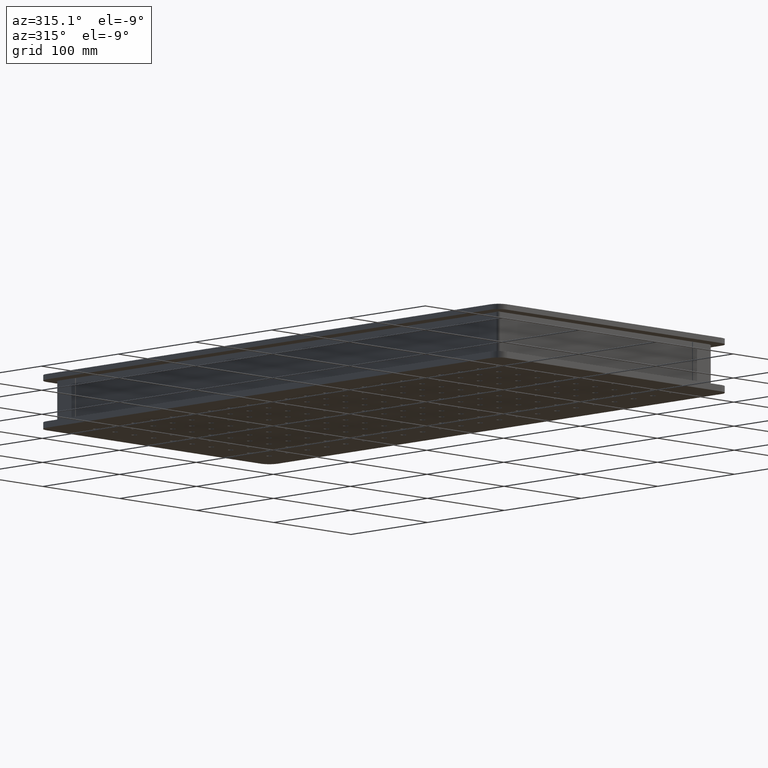
[diagram: clean part render]
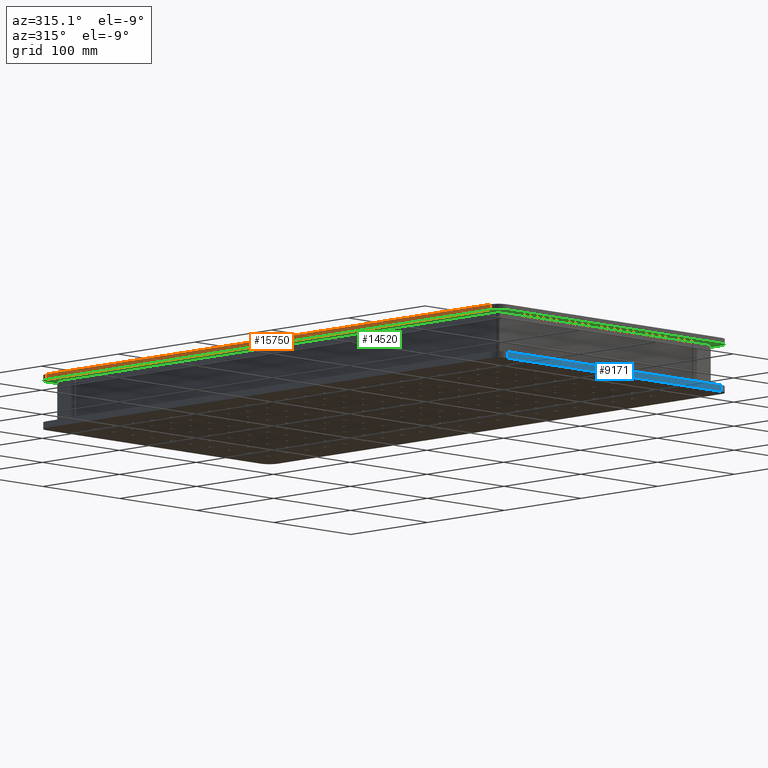
[diagram: same view with three faces highlighted in distinct colors, each labeled with its STEP entity id]
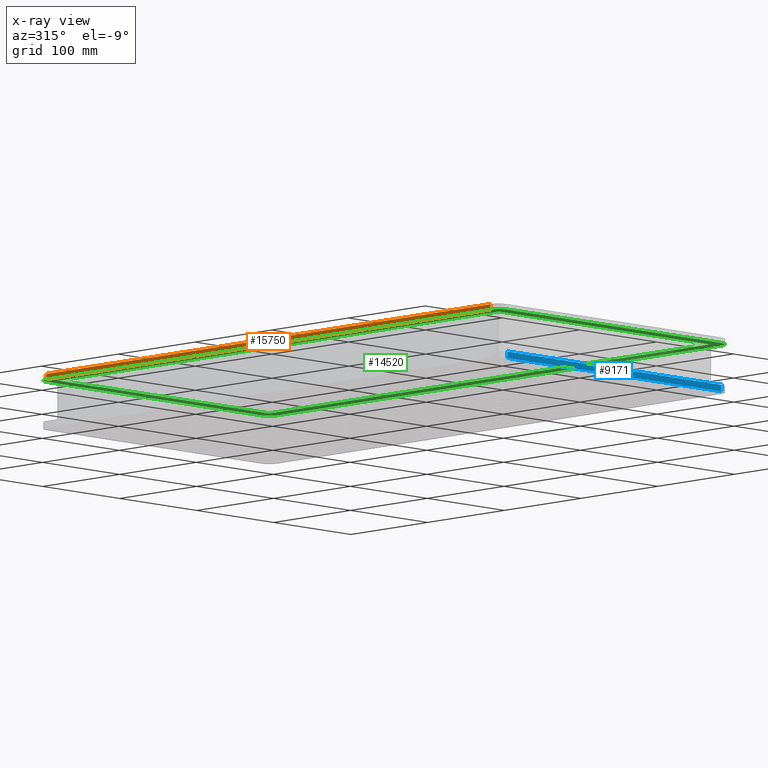
[diagram: x-ray of the same camera — body ghosted, the three highlighted faces saturated]
A machine part, auxiliary view with three faces highlighted in distinct colors.
The next image is the same camera in x-ray (body ghosted, the three faces saturated) — at least one of them is partly hidden behind the body in this view.
Their STEP definitions:

[orange] entity #15750 — the highlighted planar face has unit normal (1, 0, -0).
#391 = DIRECTION ( 'NONE',  ( -0.000000000000000000, -1.224646799147353207E-16, -1.000000000000000000 ) ) ;
#1147 = VERTEX_POINT ( 'NONE', #10438 ) ;
#1816 = CARTESIAN_POINT ( 'NONE',  ( 103.6333857621488619, 297.9691974502528637, -350.0013852687679901 ) ) ;
#2551 = EDGE_CURVE ( 'NONE', #8596, #7456, #17289, .T. ) ;
#2800 = LINE ( 'NONE', #8533, #3223 ) ;
#3155 = LINE ( 'NONE', #14967, #4150 ) ;
#3223 = VECTOR ( 'NONE', #4287, 1000.000000000000000 ) ;
#3708 = EDGE_CURVE ( 'NONE', #7456, #1147, #3155, .T. ) ;
#4150 = VECTOR ( 'NONE', #9205, 1000.000000000000000 ) ;
#4287 = DIRECTION ( 'NONE',  ( 0.000000000000000000, -1.000000000000000000, 1.224646799147353207E-16 ) ) ;
#5705 = ORIENTED_EDGE ( 'NONE', *, *, #2551, .F. ) ;
#5785 = CARTESIAN_POINT ( 'NONE',  ( 103.6333857621488619, -280.0308025497471363, -350.0013852687678764 ) ) ;
#6960 = CARTESIAN_POINT ( 'NONE',  ( 103.6333857621488619, -280.0308025497471363, -355.0013852687678764 ) ) ;
#6979 = CARTESIAN_POINT ( 'NONE',  ( 103.6333857621488619, -280.0308025497471363, -350.0013852687678764 ) ) ;
#7169 = DIRECTION ( 'NONE',  ( 1.000000000000000000, 1.209632619948746639E-16, -1.481372716164459449E-32 ) ) ;
#7397 = LINE ( 'NONE', #16506, #8637 ) ;
#7456 = VERTEX_POINT ( 'NONE', #6960 ) ;
#7727 = DIRECTION ( 'NONE',  ( -1.209632619948746639E-16, 1.000000000000000000, -1.224646799147353207E-16 ) ) ;
#7760 = VERTEX_POINT ( 'NONE', #1816 ) ;
#7968 = VECTOR ( 'NONE', #391, 1000.000000000000000 ) ;
#8411 = EDGE_CURVE ( 'NONE', #1147, #7760, #7397, .T. ) ;
#8533 = CARTESIAN_POINT ( 'NONE',  ( 103.6333857621488619, 597.9691974502527501, -350.0013852687679901 ) ) ;
#8596 = VERTEX_POINT ( 'NONE', #5785 ) ;
#8637 = VECTOR ( 'NONE', #19480, 1000.000000000000000 ) ;
#8764 = EDGE_LOOP ( 'NONE', ( #18423, #18730, #17019, #5705 ) ) ;
#9205 = DIRECTION ( 'NONE',  ( -1.209632619948746639E-16, 1.000000000000000000, -1.224646799147353207E-16 ) ) ;
#9416 = CARTESIAN_POINT ( 'NONE',  ( 103.6333857621488619, 597.9691974502527501, -350.0013852687679901 ) ) ;
#10346 = PLANE ( 'NONE',  #14460 ) ;
#10438 = CARTESIAN_POINT ( 'NONE',  ( 103.6333857621488619, 297.9691974502528637, -355.0013852687679901 ) ) ;
#14460 = AXIS2_PLACEMENT_3D ( 'NONE', #9416, #7169, #7727 ) ;
#14967 = CARTESIAN_POINT ( 'NONE',  ( 103.6333857621488619, 597.9691974502527501, -355.0013852687679901 ) ) ;
#15750 = ADVANCED_FACE ( 'NONE', ( #16835 ), #10346, .F. ) ;
#16506 = CARTESIAN_POINT ( 'NONE',  ( 103.6333857621488619, 297.9691974502527501, -350.0013852687679901 ) ) ;
#16835 = FACE_OUTER_BOUND ( 'NONE', #8764, .T. ) ;
#17019 = ORIENTED_EDGE ( 'NONE', *, *, #3708, .F. ) ;
#17289 = LINE ( 'NONE', #6979, #7968 ) ;
#18423 = ORIENTED_EDGE ( 'NONE', *, *, #18611, .F. ) ;
#18611 = EDGE_CURVE ( 'NONE', #7760, #8596, #2800, .T. ) ;
#18730 = ORIENTED_EDGE ( 'NONE', *, *, #8411, .F. ) ;
#19480 = DIRECTION ( 'NONE',  ( 0.000000000000000000, 1.224646799147353207E-16, 1.000000000000000000 ) ) ;

[blue] entity #9171 — the highlighted planar face has unit normal (0, 1, -0).
#402 = LINE ( 'NONE', #6438, #9803 ) ;
#2025 = ORIENTED_EDGE ( 'NONE', *, *, #14537, .T. ) ;
#2160 = LINE ( 'NONE', #8392, #16317 ) ;
#2793 = FACE_OUTER_BOUND ( 'NONE', #18724, .T. ) ;
#2986 = CARTESIAN_POINT ( 'NONE',  ( 114.6333857621496577, -291.0308025497472499, -400.0013852687679332 ) ) ;
#3088 = CARTESIAN_POINT ( 'NONE',  ( 114.6333857621496577, -291.0308025497472499, -394.0013852687679332 ) ) ;
#5070 = CARTESIAN_POINT ( 'NONE',  ( 114.6333857621496577, -291.0308025497471363, -400.0013852687679332 ) ) ;
#5164 = EDGE_CURVE ( 'NONE', #16438, #15297, #402, .T. ) ;
#5608 = CARTESIAN_POINT ( 'NONE',  ( 392.6333857621492598, -291.0308025497473068, -400.0013852687680469 ) ) ;
#5987 = CARTESIAN_POINT ( 'NONE',  ( 114.6333857621496577, -291.0308025497471363, -394.0013852687679332 ) ) ;
#6408 = EDGE_CURVE ( 'NONE', #16438, #18560, #14353, .T. ) ;
#6438 = CARTESIAN_POINT ( 'NONE',  ( 392.6333857621492598, -291.0308025497473068, -400.0013852687680469 ) ) ;
#7424 = AXIS2_PLACEMENT_3D ( 'NONE', #2986, #8830, #16371 ) ;
#8304 = CARTESIAN_POINT ( 'NONE',  ( 114.6333857621496577, -291.0308025497472499, -400.0013852687679332 ) ) ;
#8313 = VERTEX_POINT ( 'NONE', #5987 ) ;
#8392 = CARTESIAN_POINT ( 'NONE',  ( 114.6333857621496577, -291.0308025497471363, -400.0013852687679332 ) ) ;
#8830 = DIRECTION ( 'NONE',  ( 9.483681873221728517E-17, 1.000000000000000000, -1.161416065017276498E-32 ) ) ;
#9171 = ADVANCED_FACE ( 'NONE', ( #2793 ), #12094, .F. ) ;
#9803 = VECTOR ( 'NONE', #12483, 1000.000000000000000 ) ;
#10456 = CARTESIAN_POINT ( 'NONE',  ( 392.6333857621492598, -291.0308025497473068, -394.0013852687680469 ) ) ;
#11364 = EDGE_CURVE ( 'NONE', #18560, #8313, #2160, .T. ) ;
#12094 = PLANE ( 'NONE',  #7424 ) ;
#12450 = ORIENTED_EDGE ( 'NONE', *, *, #5164, .T. ) ;
#12483 = DIRECTION ( 'NONE',  ( 1.224646799147353207E-16, -0.000000000000000000, 1.000000000000000000 ) ) ;
#12630 = ORIENTED_EDGE ( 'NONE', *, *, #6408, .F. ) ;
#12859 = DIRECTION ( 'NONE',  ( -1.000000000000000000, 9.483681873221729749E-17, 1.264490916429563967E-16 ) ) ;
#13090 = ORIENTED_EDGE ( 'NONE', *, *, #11364, .F. ) ;
#13596 = DIRECTION ( 'NONE',  ( -1.000000000000000000, 9.483681873221729749E-17, 1.264490916429563967E-16 ) ) ;
#14353 = LINE ( 'NONE', #8304, #16229 ) ;
#14442 = DIRECTION ( 'NONE',  ( 1.224646799147353207E-16, -0.000000000000000000, 1.000000000000000000 ) ) ;
#14537 = EDGE_CURVE ( 'NONE', #15297, #8313, #16958, .T. ) ;
#15297 = VERTEX_POINT ( 'NONE', #10456 ) ;
#15679 = VECTOR ( 'NONE', #13596, 1000.000000000000000 ) ;
#16229 = VECTOR ( 'NONE', #12859, 1000.000000000000000 ) ;
#16317 = VECTOR ( 'NONE', #14442, 1000.000000000000000 ) ;
#16371 = DIRECTION ( 'NONE',  ( -1.000000000000000000, 9.483681873221728517E-17, 0.000000000000000000 ) ) ;
#16438 = VERTEX_POINT ( 'NONE', #5608 ) ;
#16958 = LINE ( 'NONE', #3088, #15679 ) ;
#18560 = VERTEX_POINT ( 'NONE', #5070 ) ;
#18724 = EDGE_LOOP ( 'NONE', ( #12630, #12450, #2025, #13090 ) ) ;

[green] entity #14520 — the highlighted planar face has unit normal (0, 0, 1).
#112 = AXIS2_PLACEMENT_3D ( 'NONE', #12545, #18581, #17093 ) ;
#312 = FACE_OUTER_BOUND ( 'NONE', #15020, .T. ) ;
#928 = VECTOR ( 'NONE', #8472, 1000.000000000000000 ) ;
#1147 = VERTEX_POINT ( 'NONE', #10438 ) ;
#1160 = EDGE_CURVE ( 'NONE', #7456, #19585, #18396, .T. ) ;
#1335 = AXIS2_PLACEMENT_3D ( 'NONE', #5970, #19256, #16489 ) ;
#1365 = ORIENTED_EDGE ( 'NONE', *, *, #12919, .F. ) ;
#1458 = LINE ( 'NONE', #5810, #7545 ) ;
#1628 = ORIENTED_EDGE ( 'NONE', *, *, #19568, .F. ) ;
#3155 = LINE ( 'NONE', #14967, #4150 ) ;
#3379 = CARTESIAN_POINT ( 'NONE',  ( 403.6333857621488050, 597.9691974502527501, -355.0013852687679901 ) ) ;
#3407 = CARTESIAN_POINT ( 'NONE',  ( 392.6333857621489187, -280.0308025497471363, -355.0013852687678764 ) ) ;
#3585 = CIRCLE ( 'NONE', #112, 10.99999999999995381 ) ;
#3691 = DIRECTION ( 'NONE',  ( 0.000000000000000000, 1.000000000000000000, 0.000000000000000000 ) ) ;
#3708 = EDGE_CURVE ( 'NONE', #7456, #1147, #3155, .T. ) ;
#3710 = VERTEX_POINT ( 'NONE', #13572 ) ;
#4150 = VECTOR ( 'NONE', #9205, 1000.000000000000000 ) ;
#4193 = VECTOR ( 'NONE', #12051, 1000.000000000000000 ) ;
#4248 = EDGE_LOOP ( 'NONE', ( #4555, #5471, #7080, #8201 ) ) ;
#4453 = EDGE_CURVE ( 'NONE', #15696, #17422, #11743, .T. ) ;
#4555 = ORIENTED_EDGE ( 'NONE', *, *, #5483, .T. ) ;
#4582 = DIRECTION ( 'NONE',  ( 0.000000000000000000, -1.000000000000000000, 1.224646799147353207E-16 ) ) ;
#4788 = CARTESIAN_POINT ( 'NONE',  ( 114.6333857621489898, -291.0308025497471931, -355.0013852687678764 ) ) ;
#4834 = VECTOR ( 'NONE', #12549, 1000.000000000000000 ) ;
#4871 = DIRECTION ( 'NONE',  ( 0.000000000000000000, 1.224646799147353207E-16, 1.000000000000000000 ) ) ;
#4935 = VECTOR ( 'NONE', #9425, 1000.000000000000000 ) ;
#4982 = DIRECTION ( 'NONE',  ( 0.000000000000000000, 1.224646799147353207E-16, 1.000000000000000000 ) ) ;
#5450 = VERTEX_POINT ( 'NONE', #15523 ) ;
#5471 = ORIENTED_EDGE ( 'NONE', *, *, #6815, .T. ) ;
#5481 = CARTESIAN_POINT ( 'NONE',  ( -385.3666142378513655, 308.9691974502528637, -355.0013852687679901 ) ) ;
#5483 = EDGE_CURVE ( 'NONE', #17422, #10511, #6796, .T. ) ;
#5803 = EDGE_CURVE ( 'NONE', #15696, #10302, #1458, .T. ) ;
#5810 = CARTESIAN_POINT ( 'NONE',  ( 353.6333857621494303, 295.9691974502528637, -355.0013852687700364 ) ) ;
#5970 = CARTESIAN_POINT ( 'NONE',  ( 114.6333857621489898, -280.0308025497471363, -355.0013852687678764 ) ) ;
#5999 = CARTESIAN_POINT ( 'NONE',  ( -385.3666142378513655, -291.0308025497471931, -355.0013852687678764 ) ) ;
#6353 = FACE_BOUND ( 'NONE', #4248, .T. ) ;
#6793 = LINE ( 'NONE', #9769, #4834 ) ;
#6796 = LINE ( 'NONE', #14229, #10055 ) ;
#6815 = EDGE_CURVE ( 'NONE', #10511, #10302, #6793, .T. ) ;
#6960 = CARTESIAN_POINT ( 'NONE',  ( 103.6333857621488619, -280.0308025497471363, -355.0013852687678764 ) ) ;
#7080 = ORIENTED_EDGE ( 'NONE', *, *, #5803, .F. ) ;
#7456 = VERTEX_POINT ( 'NONE', #6960 ) ;
#7545 = VECTOR ( 'NONE', #10458, 1000.000000000000000 ) ;
#7925 = CARTESIAN_POINT ( 'NONE',  ( 116.6333857621494303, -278.0308025497471363, -355.0013852687700364 ) ) ;
#8005 = DIRECTION ( 'NONE',  ( 1.000000000000000000, 0.000000000000000000, 0.000000000000000000 ) ) ;
#8201 = ORIENTED_EDGE ( 'NONE', *, *, #4453, .T. ) ;
#8257 = DIRECTION ( 'NONE',  ( 1.000000000000000000, 0.000000000000000000, 0.000000000000000000 ) ) ;
#8277 = CARTESIAN_POINT ( 'NONE',  ( 403.6333857621488050, -280.0308025497471363, -355.0013852687678764 ) ) ;
#8472 = DIRECTION ( 'NONE',  ( 0.000000000000000000, -1.000000000000000000, -0.000000000000000000 ) ) ;
#8958 = CIRCLE ( 'NONE', #16847, 11.00000000000001066 ) ;
#8992 = CARTESIAN_POINT ( 'NONE',  ( 390.6333857621494303, 295.9691974502528637, -355.0013852687701501 ) ) ;
#9205 = DIRECTION ( 'NONE',  ( -1.209632619948746639E-16, 1.000000000000000000, -1.224646799147353207E-16 ) ) ;
#9394 = VECTOR ( 'NONE', #8257, 1000.000000000000000 ) ;
#9425 = DIRECTION ( 'NONE',  ( 0.000000000000000000, -1.000000000000000000, 1.224646799147353207E-16 ) ) ;
#9769 = CARTESIAN_POINT ( 'NONE',  ( 390.6333857621494303, 595.9691974502527501, -355.0013852687701501 ) ) ;
#10055 = VECTOR ( 'NONE', #8005, 1000.000000000000000 ) ;
#10302 = VERTEX_POINT ( 'NONE', #8992 ) ;
#10438 = CARTESIAN_POINT ( 'NONE',  ( 103.6333857621488619, 297.9691974502528637, -355.0013852687679901 ) ) ;
#10458 = DIRECTION ( 'NONE',  ( 1.000000000000000000, 0.000000000000000000, 0.000000000000000000 ) ) ;
#10504 = ORIENTED_EDGE ( 'NONE', *, *, #15547, .T. ) ;
#10511 = VERTEX_POINT ( 'NONE', #17648 ) ;
#10643 = DIRECTION ( 'NONE',  ( 0.000000000000000000, 1.000000000000000000, 0.000000000000000000 ) ) ;
#10761 = EDGE_CURVE ( 'NONE', #18823, #13000, #16948, .T. ) ;
#11228 = CARTESIAN_POINT ( 'NONE',  ( 114.6333857621487624, 297.9691974502528637, -355.0013852687679901 ) ) ;
#11743 = LINE ( 'NONE', #13033, #928 ) ;
#11926 = CARTESIAN_POINT ( 'NONE',  ( 116.6333857621494303, 295.9691974502528637, -355.0013852687700364 ) ) ;
#12051 = DIRECTION ( 'NONE',  ( -1.000000000000000000, 0.000000000000000000, 0.000000000000000000 ) ) ;
#12300 = EDGE_CURVE ( 'NONE', #5450, #1147, #8958, .T. ) ;
#12402 = CARTESIAN_POINT ( 'NONE',  ( 1092.633385762148919, 597.9691974502527501, -355.0013852687679901 ) ) ;
#12545 = CARTESIAN_POINT ( 'NONE',  ( 392.6333857621489187, 297.9691974502528637, -355.0013852687679901 ) ) ;
#12549 = DIRECTION ( 'NONE',  ( 0.000000000000000000, 1.000000000000000000, -0.000000000000000000 ) ) ;
#12719 = ORIENTED_EDGE ( 'NONE', *, *, #10761, .T. ) ;
#12919 = EDGE_CURVE ( 'NONE', #18823, #3710, #3585, .T. ) ;
#12927 = CARTESIAN_POINT ( 'NONE',  ( 392.6333857621489187, -291.0308025497470794, -355.0013852687678764 ) ) ;
#13000 = VERTEX_POINT ( 'NONE', #8277 ) ;
#13033 = CARTESIAN_POINT ( 'NONE',  ( 116.6333857621494303, 595.9691974502527501, -355.0013852687700364 ) ) ;
#13097 = VERTEX_POINT ( 'NONE', #12927 ) ;
#13219 = ORIENTED_EDGE ( 'NONE', *, *, #19079, .T. ) ;
#13306 = ORIENTED_EDGE ( 'NONE', *, *, #3708, .T. ) ;
#13572 = CARTESIAN_POINT ( 'NONE',  ( 392.6333857621489187, 308.9691974502528637, -355.0013852687679901 ) ) ;
#13975 = CIRCLE ( 'NONE', #19028, 10.99999999999989875 ) ;
#14229 = CARTESIAN_POINT ( 'NONE',  ( 353.6333857621494303, -278.0308025497471363, -355.0013852687700364 ) ) ;
#14520 = ADVANCED_FACE ( 'NONE', ( #312, #6353 ), #18047, .F. ) ;
#14967 = CARTESIAN_POINT ( 'NONE',  ( 103.6333857621488619, 597.9691974502527501, -355.0013852687679901 ) ) ;
#15020 = EDGE_LOOP ( 'NONE', ( #10504, #1365, #12719, #1628, #13219, #19116, #13306, #16693 ) ) ;
#15167 = CARTESIAN_POINT ( 'NONE',  ( 403.6333857621488050, 297.9691974502528637, -355.0013852687679901 ) ) ;
#15523 = CARTESIAN_POINT ( 'NONE',  ( 114.6333857621487624, 308.9691974502528637, -355.0013852687679901 ) ) ;
#15547 = EDGE_CURVE ( 'NONE', #5450, #3710, #15891, .T. ) ;
#15696 = VERTEX_POINT ( 'NONE', #11926 ) ;
#15891 = LINE ( 'NONE', #5481, #9394 ) ;
#16489 = DIRECTION ( 'NONE',  ( 0.000000000000000000, 1.000000000000000000, 0.000000000000000000 ) ) ;
#16693 = ORIENTED_EDGE ( 'NONE', *, *, #12300, .F. ) ;
#16847 = AXIS2_PLACEMENT_3D ( 'NONE', #11228, #17256, #3691 ) ;
#16948 = LINE ( 'NONE', #3379, #4935 ) ;
#17093 = DIRECTION ( 'NONE',  ( 0.000000000000000000, 1.000000000000000000, 0.000000000000000000 ) ) ;
#17256 = DIRECTION ( 'NONE',  ( 0.000000000000000000, 1.224646799147353207E-16, 1.000000000000000000 ) ) ;
#17422 = VERTEX_POINT ( 'NONE', #7925 ) ;
#17630 = LINE ( 'NONE', #5999, #4193 ) ;
#17648 = CARTESIAN_POINT ( 'NONE',  ( 390.6333857621494303, -278.0308025497471363, -355.0013852687701501 ) ) ;
#18047 = PLANE ( 'NONE',  #19156 ) ;
#18396 = CIRCLE ( 'NONE', #1335, 11.00000000000001066 ) ;
#18581 = DIRECTION ( 'NONE',  ( 0.000000000000000000, 1.224646799147353207E-16, 1.000000000000000000 ) ) ;
#18823 = VERTEX_POINT ( 'NONE', #15167 ) ;
#19028 = AXIS2_PLACEMENT_3D ( 'NONE', #3407, #4982, #10643 ) ;
#19079 = EDGE_CURVE ( 'NONE', #13097, #19585, #17630, .T. ) ;
#19116 = ORIENTED_EDGE ( 'NONE', *, *, #1160, .F. ) ;
#19156 = AXIS2_PLACEMENT_3D ( 'NONE', #12402, #4871, #4582 ) ;
#19256 = DIRECTION ( 'NONE',  ( 0.000000000000000000, 1.224646799147353207E-16, 1.000000000000000000 ) ) ;
#19568 = EDGE_CURVE ( 'NONE', #13097, #13000, #13975, .T. ) ;
#19585 = VERTEX_POINT ( 'NONE', #4788 ) ;